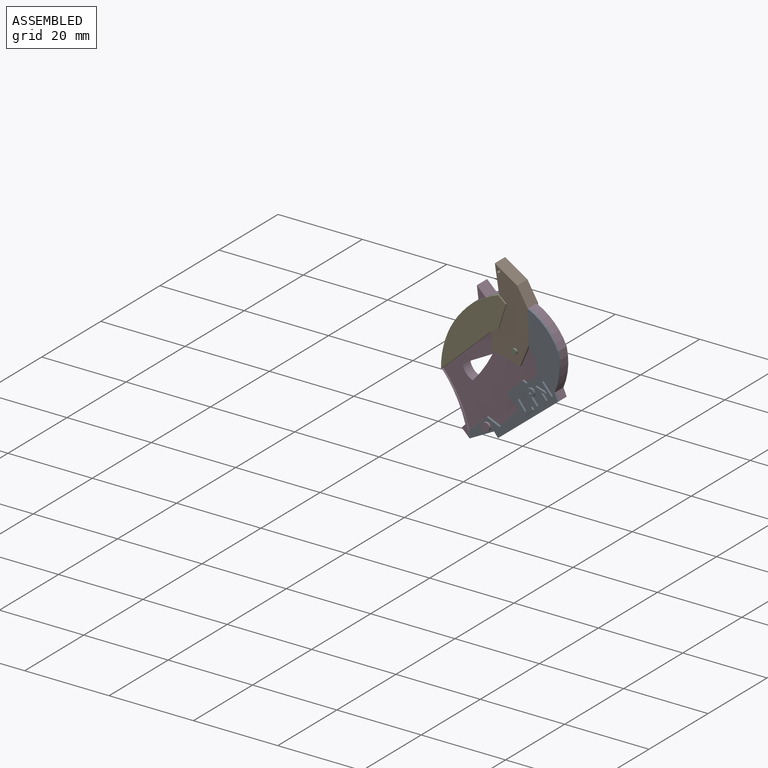
[diagram: assembled view]
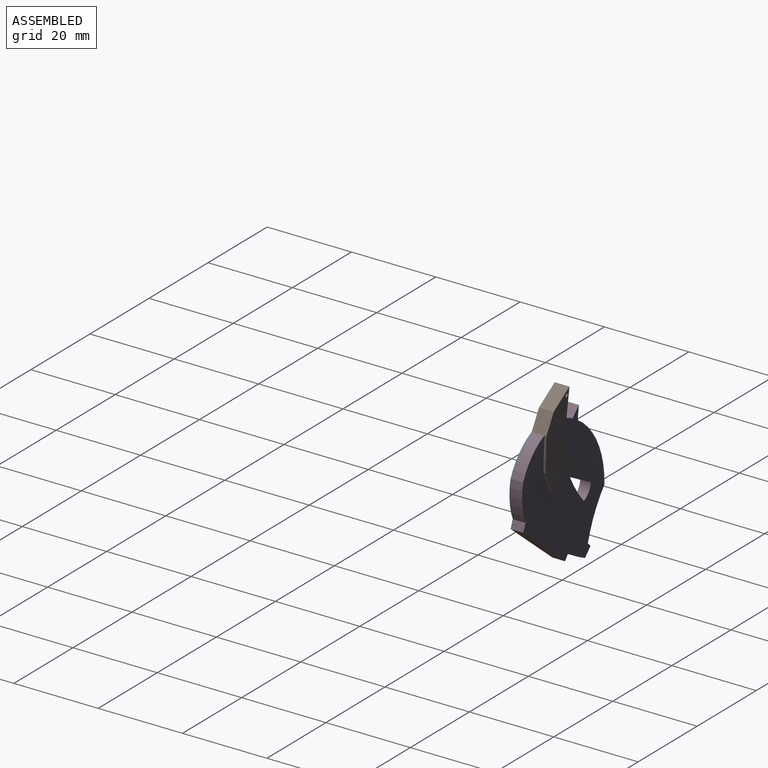
[diagram: assembled view, second angle]
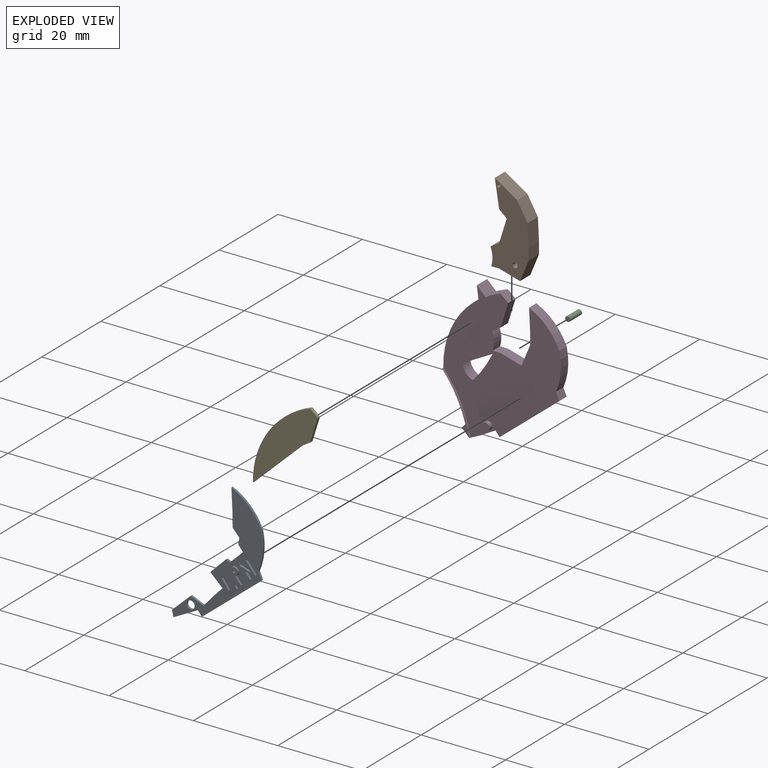
[diagram: exploded view]
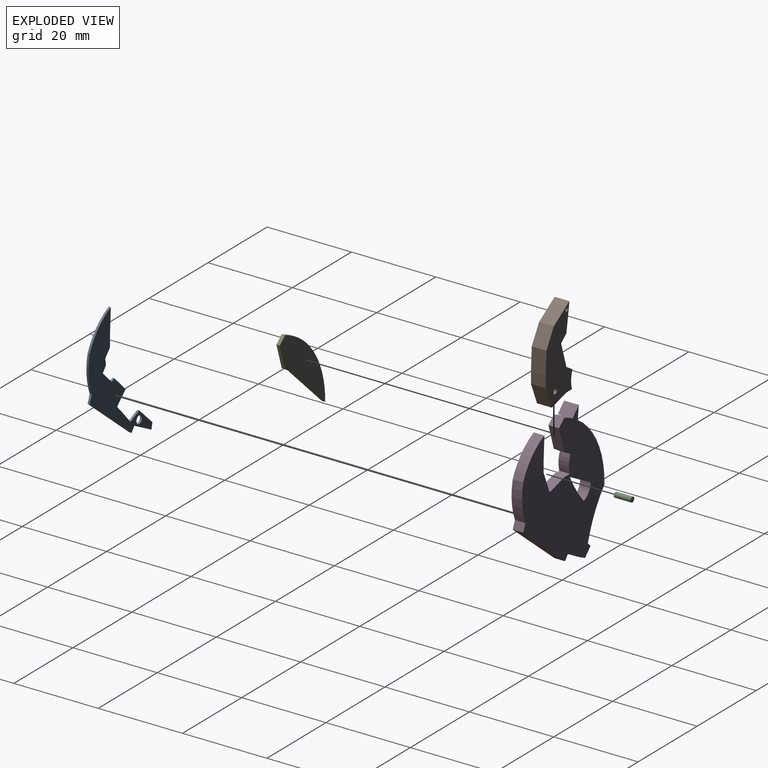
[diagram: exploded view, second angle]
ASSEMBLY  parts=5 mates=4
PART A: 47 faces, bbox 21.6x1x31.5 mm
  f0: plane 31.51x21.64mm, normal (0,-1,0), area 162.3mm2, adj f1,f2,f3,f4,f5,f6,f7,f8
  f1: plane 5.79x3.06mm, normal (0.47,0,-0.88), area 3.3mm2, adj f0,f2,f22,f23
  f2: plane 1.18x0.96mm, normal (-0.78,0,-0.63), area 0.8mm2, adj f0,f1,f3,f23
  f3: plane 14.18x11.53mm, normal (0.63,0,-0.78), area 9.1mm2, adj f0,f2,f4,f23
  f4: plane 1.79x0.77mm, normal (0.92,0,0.39), area 1mm2, adj f0,f3,f5,f23
  f5: cylinder r=14.55mm len=8.97mm, axis (0,1,0), area 4.6mm2, adj f0,f4,f6,f23
  f6: cylinder r=14.11mm len=7.34mm, axis (0,1,0), area 5.3mm2, adj f0,f5,f7,f23
  f7: plane 5.29x0.5mm, normal (-1,0,-0.05), area 2.7mm2, adj f0,f6,f8,f23
  f8: plane 1.68x0.5mm, normal (-1,0,0), area 0.8mm2, adj f0,f7,f9,f23
  f9: plane 1.6x0.5mm, normal (-1,0,-0.04), area 0.8mm2, adj f0,f8,f10,f23
  f10: plane 1.7x1.57mm, normal (-0.74,0,-0.68), area 1.2mm2, adj f0,f9,f11,f23
  f11: plane 1.53x0.5mm, normal (-0.99,0,0.16), area 0.8mm2, adj f0,f10,f12,f23
  f12: plane 1.37x1.09mm, normal (-0.78,0,-0.62), area 0.9mm2, adj f0,f11,f13,f23
  f13: plane 3.04x2.98mm, normal (-0.7,0,0.72), area 2.1mm2, adj f0,f12,f14,f23
  f14: plane 0.93x0.5mm, normal (0.4,0,0.92), area 0.5mm2, adj f0,f13,f15,f23
  f15: plane 3.76x3.75mm, normal (-0.71,0,0.71), area 2.7mm2, adj f0,f14,f16,f23
  f16: plane 2.88x2.67mm, normal (-0.68,0,-0.73), area 2mm2, adj f0,f15,f17,f23
  f17: plane 2.57x2.38mm, normal (-0.73,0,0.68), area 1.8mm2, adj f0,f16,f18,f23
  f18: plane 2.41x2.14mm, normal (-0.75,0,0.66), area 1.6mm2, adj f0,f17,f19,f23
  f19: plane 3.01x1.32mm, normal (0.4,0,0.92), area 1.6mm2, adj f0,f18,f20,f23
  f20: plane 4.45x4.21mm, normal (-0.69,0,0.73), area 3.1mm2, adj f0,f19,f22,f23
  f21: cylinder r=0.94mm len=1.88mm, axis (0,1,0), area 3mm2, adj f0,f23
  f22: cylinder r=28.58mm len=1.49mm, axis (0,1,0), area 0.8mm2, adj f0,f1,f20,f23
  f23: plane 31.51x21.64mm, normal (0,1,0), area 174.2mm2, adj f1,f2,f3,f4,f5,f6,f7,f8
  f24: plane 2.22x1.65mm, normal (0.8,0,0.6), area 1.4mm2, adj f0,f25,f29,f30
  f25: plane 0.5x0.48mm, normal (-0.68,0,0.73), area 0.3mm2, adj f0,f24,f26,f30
  f26: plane 2.7x2.13mm, normal (-0.79,0,-0.62), area 1.7mm2, adj f0,f25,f27,f30
  f27: plane 1.92x1.8mm, normal (0.68,0,-0.73), area 1.3mm2, adj f0,f26,f28,f30
  f28: plane 0.5x0.5mm, normal (0.73,0,0.68), area 0.3mm2, adj f0,f27,f29,f30
  f29: plane 1.46x1.36mm, normal (-0.68,0,0.73), area 1mm2, adj f0,f24,f28,f30
  f30: plane 4.06x3.16mm, normal (0,-1,0), area 3.5mm2, adj f24,f25,f26,f27,f28,f29
  f31: plane 1.65x1.35mm, normal (0.77,0,0.63), area 1.1mm2, adj f0,f32,f35,f36
  f32: cylinder r=0.96mm len=1.92mm, axis (0,1,0), area 2.3mm2, adj f0,f31,f33,f36
  f33: plane 2.55x2.01mm, normal (-0.79,0,-0.62), area 1.6mm2, adj f0,f32,f35,f36
  f34: cylinder r=0.28mm len=0.57mm, axis (0,1,0), area 0.9mm2, adj f36,f37
  f35: plane 0.53x0.5mm, normal (0.68,0,-0.73), area 0.4mm2, adj f0,f31,f33,f36
  f36: plane 4x2.68mm, normal (0,-1,0), area 4.3mm2, adj f31,f32,f33,f34,f35
  f37: plane 0.57x0.57mm, normal (0,-1,0), area 0.3mm2, adj f34
  f38: plane 1.49x1.25mm, normal (0.77,0,0.64), area 1mm2, adj f0,f39,f45,f46
  f39: plane 2.46x0.5mm, normal (-0.09,0,-1), area 1.2mm2, adj f0,f38,f40,f46
  f40: plane 2.57x2.24mm, normal (0.75,0,0.66), area 1.7mm2, adj f0,f39,f41,f46
  f41: plane 0.5x0.41mm, normal (-0.56,0,0.83), area 0.2mm2, adj f0,f40,f42,f46
  f42: plane 1.98x1.57mm, normal (-0.78,0,-0.62), area 1.3mm2, adj f0,f41,f43,f46
  f43: plane 2.72x0.88mm, normal (0.31,0,0.95), area 1.4mm2, adj f0,f42,f44,f46
  f44: plane 2.79x2.28mm, normal (-0.77,0,-0.63), area 1.8mm2, adj f0,f43,f45,f46
  f45: plane 0.5x0.31mm, normal (0.71,0,-0.7), area 0.2mm2, adj f0,f38,f44,f46
  f46: plane 4.17x3.8mm, normal (0,-1,0), area 3.9mm2, adj f38,f39,f40,f41,f42,f43,f44,f45
PART B: 16 faces, bbox 9.1x3.5x20.5 mm
  f0: plane 3.5x2.65mm, normal (1,0,0), area 9.3mm2, adj f1,f13,f14,f15
  f1: plane 5.29x3.5mm, normal (1,0,0.05), area 18.6mm2, adj f0,f2,f14,f15
  f2: plane 4.27x3.5mm, normal (0.87,0,0.5), area 17.3mm2, adj f1,f3,f14,f15
  f3: plane 5.29x3.5mm, normal (0.54,0,0.84), area 22mm2, adj f2,f4,f14,f15
  f4: plane 6.45x3.5mm, normal (-0.99,0,-0.16), area 22.9mm2, adj f3,f5,f14,f15
  f5: plane 3.5x1.79mm, normal (-0.65,0,-0.76), area 8.3mm2, adj f4,f6,f14,f15
  f6: plane 5.72x3.5mm, normal (-0.95,0,0.3), area 21mm2, adj f5,f7,f14,f15
  f7: plane 3.5x2.05mm, normal (-0.53,0,0.85), area 8.5mm2, adj f6,f8,f14,f15
  f8: cylinder r=6.06mm len=4.18mm, axis (0,1,0), area 15mm2, adj f7,f9,f14,f15
  f9: plane 3.5x1.88mm, normal (0,0,-1), area 6.6mm2, adj f8,f10,f14,f15
  f10: plane 4.95x3.5mm, normal (-0.27,0,-0.96), area 18mm2, adj f9,f13,f14,f15
  f11: cylinder r=0.6mm len=3.5mm, axis (0,1,0), area 13.3mm2, adj f14,f15
  f12: cylinder r=0.41mm len=3.5mm, axis (0,1,0), area 9mm2, adj f14,f15
  f13: plane 4.95x3.5mm, normal (0.92,0,-0.38), area 18.8mm2, adj f0,f10,f14,f15
  f14: plane 20.54x9.05mm, normal (0,-1,0), area 113.8mm2, adj f0,f1,f2,f3,f4,f5,f6,f7
  f15: plane 20.54x9.05mm, normal (0,1,0), area 113.8mm2, adj f0,f1,f2,f3,f4,f5,f6,f7
PART C: 3 faces, bbox 1.2x4x1.2 mm
  f0: cylinder r=0.6mm len=4mm, axis (0,1,0), area 15.2mm2, adj f1,f2
  f1: plane 1.21x1.21mm, normal (0,-1,0), area 1.1mm2, adj f0
  f2: plane 1.21x1.21mm, normal (0,1,0), area 1.1mm2, adj f0
PART D: 36 faces, bbox 27.9x3.5x33.6 mm
  f0: plane 32.71x27.89mm, normal (0,-1,0), area 517.8mm2, adj f1,f2,f3,f4,f5,f6,f7,f8
  f1: cylinder r=19.86mm len=2.8mm, axis (0,1,0), area 7.6mm2, adj f0,f12,f25,f27
  f2: cylinder r=3.47mm len=3.07mm, axis (0,1,0), area 10.3mm2, adj f0,f3,f24,f25
  f3: plane 7.09x3.84mm, normal (0.48,0,-0.88), area 20.2mm2, adj f0,f2,f24,f25
  f4: plane 5.29x2.5mm, normal (-1,0,-0.05), area 13.3mm2, adj f0,f5,f23,f25
  f5: plane 2.65x2.5mm, normal (-1,0,0), area 6.6mm2, adj f0,f4,f6,f25
  f6: plane 4.95x2.5mm, normal (-0.92,0,0.38), area 13.4mm2, adj f0,f5,f7,f25
  f7: plane 4.95x2.5mm, normal (0.27,0,0.96), area 12.8mm2, adj f0,f6,f8,f25
  f8: plane 2.5x1.88mm, normal (0,0,1), area 4.7mm2, adj f0,f7,f9,f25
  f9: cylinder r=6.06mm len=4.18mm, axis (0,1,0), area 10.7mm2, adj f0,f8,f10,f25
  f10: plane 2.5x2.05mm, normal (0.53,0,-0.85), area 6mm2, adj f0,f9,f11,f25
  f11: plane 5.72x2.5mm, normal (0.95,0,-0.3), area 15mm2, adj f0,f10,f12,f25
  f12: plane 2.5x1.79mm, normal (0.65,0,0.76), area 5.9mm2, adj f0,f1,f11,f25
  f13: cylinder r=19.86mm len=17.28mm, axis (0,1,0), area 51mm2, adj f0,f14,f25,f28
  f14: cylinder r=27.54mm len=10.46mm, axis (0,1,0), area 35.9mm2, adj f13,f15,f25,f33,f35
  f15: plane 3x0.9mm, normal (-0.71,0,0.71), area 3.8mm2, adj f14,f16,f25,f35
  f16: plane 3x1.88mm, normal (-0.71,0,-0.71), area 8mm2, adj f15,f17,f25,f34,f35
  f17: plane 2.5x2.14mm, normal (0.43,0,-0.9), area 5.9mm2, adj f0,f16,f18,f25
  f18: plane 3.65x2.5mm, normal (0.49,0,-0.87), area 10.5mm2, adj f0,f17,f19,f25
  f19: plane 2.5x1.18mm, normal (-0.78,0,-0.63), area 3.8mm2, adj f0,f18,f20,f25
  f20: plane 14.18x11.53mm, normal (0.63,0,-0.78), area 45.7mm2, adj f0,f19,f21,f25
  f21: plane 2.5x1.79mm, normal (0.92,0,0.39), area 4.9mm2, adj f0,f20,f22,f25
  f22: cylinder r=14.55mm len=8.97mm, axis (0,1,0), area 22.9mm2, adj f0,f21,f23,f25
  f23: cylinder r=14.11mm len=7.34mm, axis (0,1,0), area 26.3mm2, adj f0,f4,f22,f25
  f24: cylinder r=31.02mm len=6.92mm, axis (0,1,0), area 21mm2, adj f0,f2,f3,f25
  f25: plane 33.59x27.89mm, normal (0,1,0), area 526.9mm2, adj f1,f2,f3,f4,f5,f6,f7,f8
  f26: cylinder r=19.86mm len=1.74mm, axis (0,1,0), area 2mm2, adj f0,f27,f28,f29
  f27: plane 3.5x2.13mm, normal (0.7,0,0.72), area 10.4mm2, adj f1,f25,f26,f28,f29
  f28: plane 3.5x3.07mm, normal (-0.99,0,-0.13), area 10.8mm2, adj f13,f25,f26,f27,f29
  f29: plane 3.07x2.13mm, normal (0,-1,0), area 2.8mm2, adj f26,f27,f28
  f30: cylinder r=0.94mm len=1.88mm, axis (0,1,0), area 5.9mm2, adj f0,f31
  f31: plane 1.88x1.88mm, normal (0,-1,0), area 2.8mm2, adj f30
  f32: plane 0.5x0.12mm, normal (0.69,0,-0.73), area 0.1mm2, adj f0,f33,f34,f35
  f33: cylinder r=28.58mm len=11.75mm, axis (0,1,0), area 6.7mm2, adj f0,f14,f32,f35
  f34: plane 1.37x0.5mm, normal (0.95,0,0.32), area 0.7mm2, adj f0,f16,f32,f35
  f35: plane 13.24x6.58mm, normal (0,-1,0), area 3.4mm2, adj f14,f15,f16,f32,f33,f34
PART E: 7 faces, bbox 15.4x0.8x19.5 mm
  f0: plane 1.79x1.54mm, normal (0.65,0,0.76), area 1.9mm2, adj f1,f4,f5,f6
  f1: cylinder r=20.34mm len=19.47mm, axis (0,1,0), area 20.3mm2, adj f0,f2,f5,f6
  f2: plane 11.53x10.93mm, normal (0.69,0,-0.73), area 12.7mm2, adj f1,f3,f5,f6
  f3: plane 2.05x1.28mm, normal (0.53,0,-0.85), area 1.9mm2, adj f2,f4,f5,f6
  f4: plane 5.72x1.79mm, normal (0.95,0,-0.3), area 4.8mm2, adj f0,f3,f5,f6
  f5: plane 19.47x15.37mm, normal (0,-1,0), area 113.7mm2, adj f0,f1,f2,f3,f4
  f6: plane 19.47x15.37mm, normal (0,1,0), area 113.7mm2, adj f0,f1,f2,f3,f4
PLACE A t=(-8.38,-21.28,-2.88)mm
PLACE B t=(-8.38,-20.78,-2.88)mm
PLACE C rot(axis=(-1,0,0),180deg) t=(-8.38,-24.78,15.16)mm
PLACE D t=(-8.38,-21.28,-2.88)mm
PLACE E t=(-8.38,-21.28,-2.88)mm
MATE fastened B.f11 <-> C.f0  axis (0,1,0) through (-18.76,-20.78,6.14)mm
MATE fastened B.f10 <-> D.f7  axis (-0.27,0,-0.96) through (-20.07,-22.53,3.78)mm
MATE fastened D.f0 <-> E.f6  axis (0,-1,0) through (-36.12,-23.78,-2.28)mm
MATE fastened D.f0 <-> A.f23  axis (0,-1,0) through (-15.8,-23.78,16)mm
